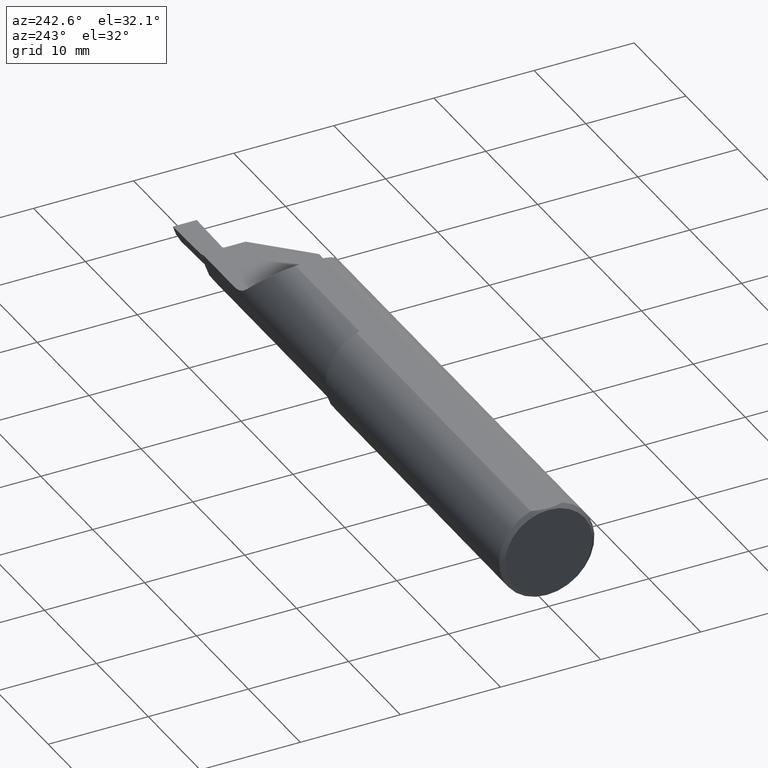
[diagram: clean part render]
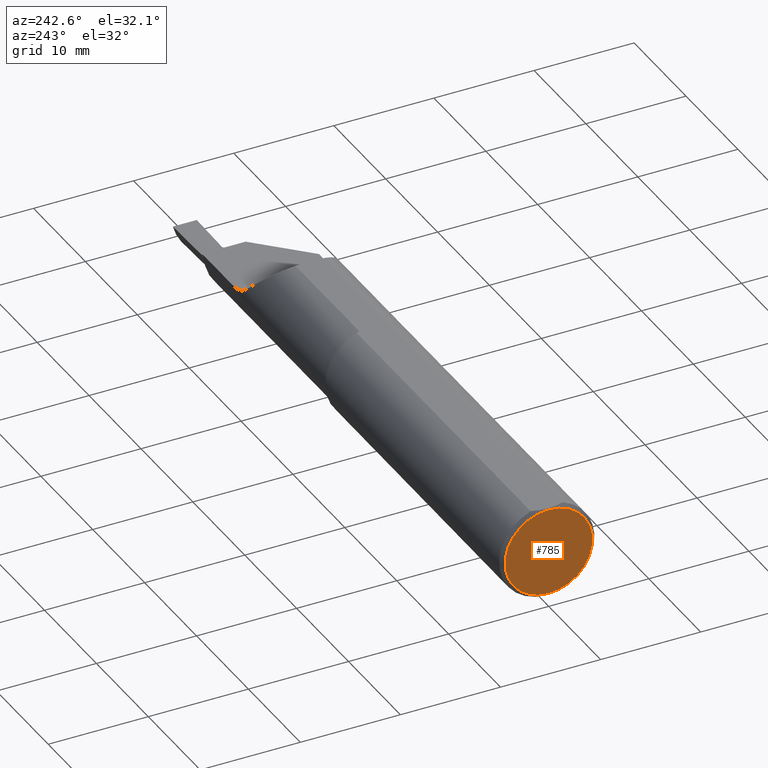
[diagram: same view with one face highlighted and labeled with its STEP entity id]
A machine part, auxiliary view. The second image highlights one B-rep face of the part: STEP entity #785.
In plain terms, the highlighted planar face has unit normal (1, 0, 0).
Its self-contained STEP definition (entity closure, byte-faithful):
#45 = DIRECTION ( 'NONE',  ( -1.000000000000000000, -0.000000000000000000, -0.000000000000000000 ) ) ;
#142 = DIRECTION ( 'NONE',  ( 1.000000000000000000, 0.000000000000000000, 0.000000000000000000 ) ) ;
#166 = EDGE_CURVE ( 'NONE', #348, #421, #496, .T. ) ;
#209 = AXIS2_PLACEMENT_3D ( 'NONE', #744, #399, #531 ) ;
#221 = CARTESIAN_POINT ( 'NONE',  ( 0.000000000000000000, 0.000000000000000000, -0.1723500000000004195 ) ) ;
#236 = DIRECTION ( 'NONE',  ( 0.000000000000000000, 0.000000000000000000, -1.000000000000000000 ) ) ;
#297 = FACE_OUTER_BOUND ( 'NONE', #815, .T. ) ;
#312 = EDGE_CURVE ( 'NONE', #421, #348, #468, .T. ) ;
#348 = VERTEX_POINT ( 'NONE', #221 ) ;
#399 = DIRECTION ( 'NONE',  ( -1.000000000000000000, -0.000000000000000000, -0.000000000000000000 ) ) ;
#421 = VERTEX_POINT ( 'NONE', #581 ) ;
#468 = CIRCLE ( 'NONE', #209, 0.1723500000000004195 ) ;
#496 = CIRCLE ( 'NONE', #792, 0.1723500000000004195 ) ;
#531 = DIRECTION ( 'NONE',  ( 0.000000000000000000, 0.000000000000000000, -1.000000000000000000 ) ) ;
#538 = CARTESIAN_POINT ( 'NONE',  ( 0.000000000000000000, 0.000000000000000000, 0.000000000000000000 ) ) ;
#555 = PLANE ( 'NONE',  #591 ) ;
#560 = ORIENTED_EDGE ( 'NONE', *, *, #312, .T. ) ;
#581 = CARTESIAN_POINT ( 'NONE',  ( 0.000000000000000000, 2.202527268266516892E-17, 0.1723500000000004195 ) ) ;
#591 = AXIS2_PLACEMENT_3D ( 'NONE', #538, #142, #830 ) ;
#716 = ORIENTED_EDGE ( 'NONE', *, *, #166, .T. ) ;
#744 = CARTESIAN_POINT ( 'NONE',  ( 0.000000000000000000, 0.000000000000000000, 0.000000000000000000 ) ) ;
#785 = ADVANCED_FACE ( 'NONE', ( #297 ), #555, .F. ) ;
#792 = AXIS2_PLACEMENT_3D ( 'NONE', #831, #45, #236 ) ;
#815 = EDGE_LOOP ( 'NONE', ( #716, #560 ) ) ;
#830 = DIRECTION ( 'NONE',  ( 0.000000000000000000, 0.000000000000000000, -1.000000000000000000 ) ) ;
#831 = CARTESIAN_POINT ( 'NONE',  ( 0.000000000000000000, 0.000000000000000000, 0.000000000000000000 ) ) ;